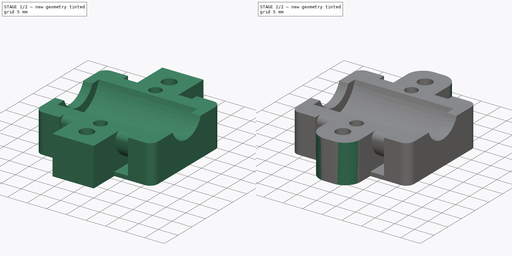
[diagram: build sequence overview — one tinted view per stage of 2, left to right]
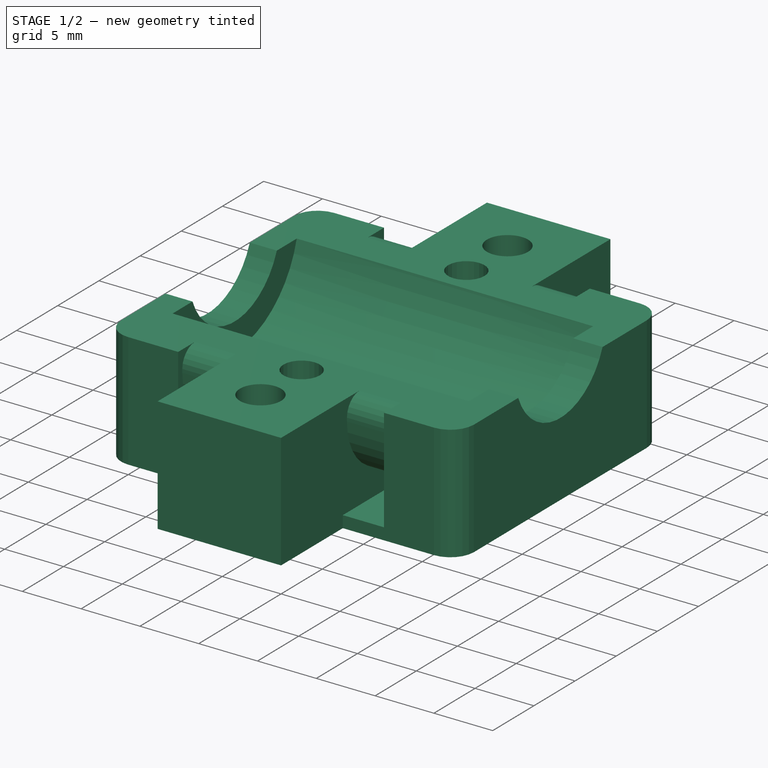
[diagram: stage 1 of 2 — iso view after this stage's code; geometry added in this stage tinted green]
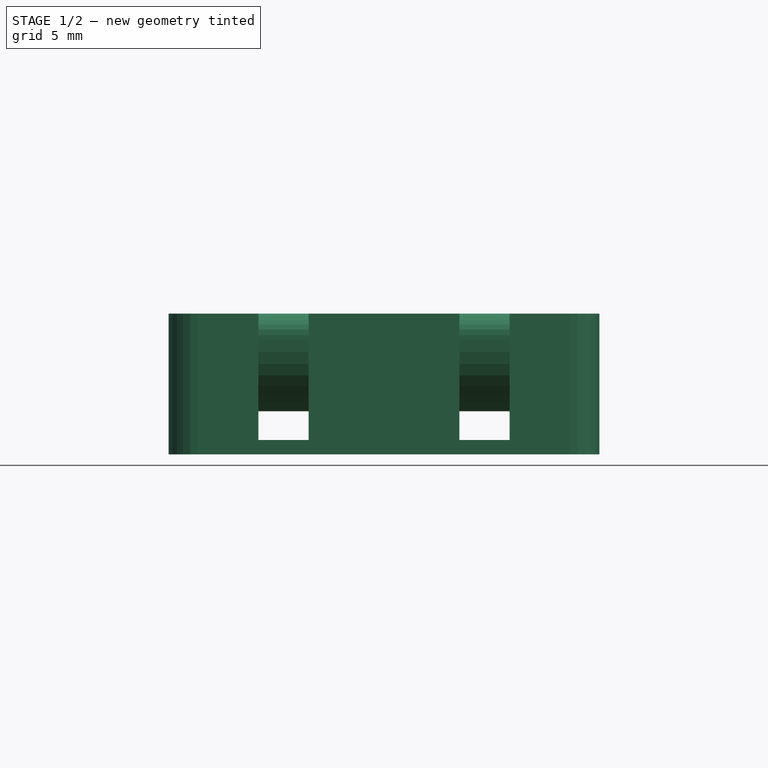
[diagram: stage 1 of 2 — front view after this stage's code; geometry added in this stage tinted green]
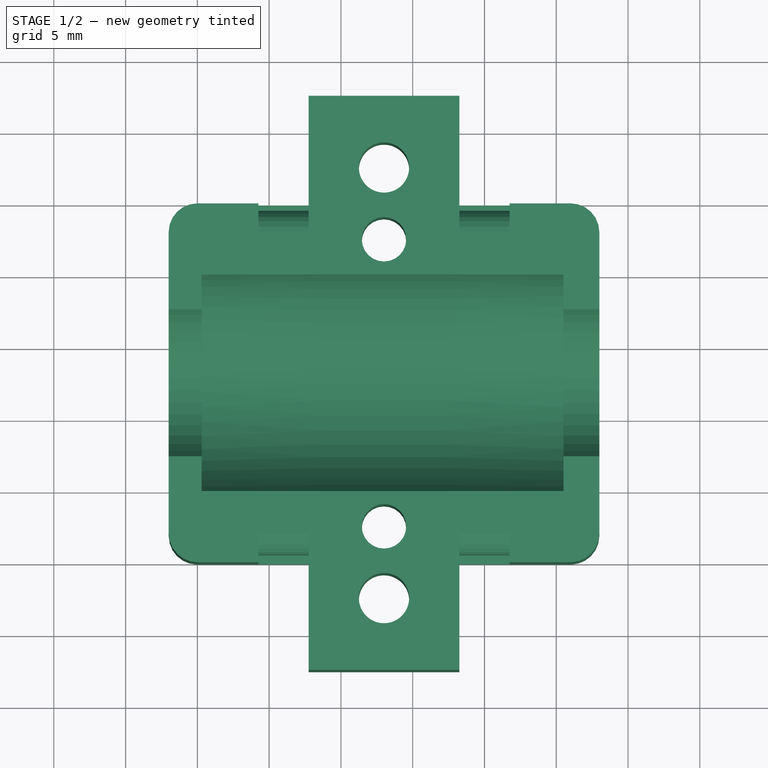
[diagram: stage 1 of 2 — top view after this stage's code; geometry added in this stage tinted green]
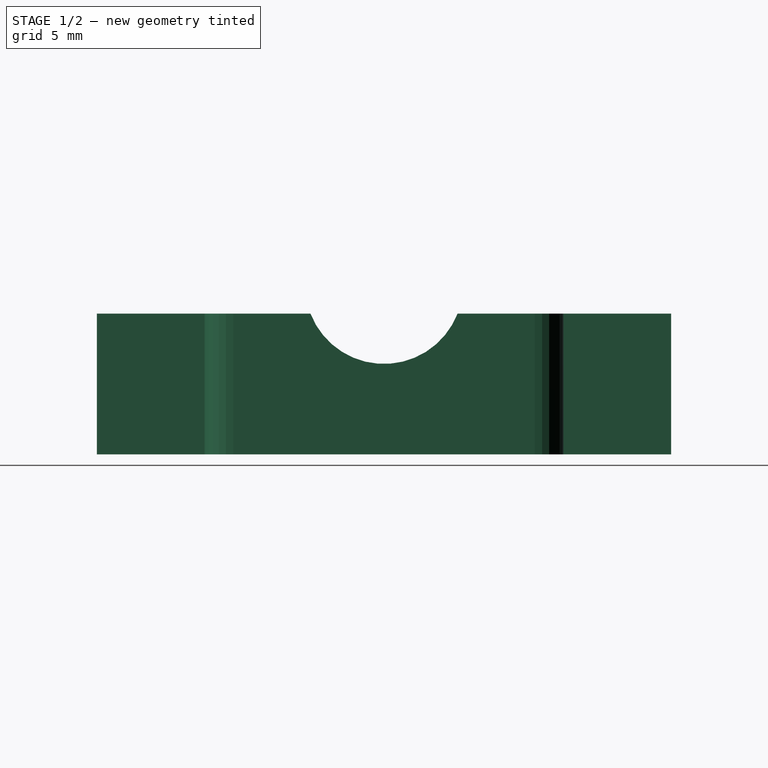
[diagram: stage 1 of 2 — right view after this stage's code; geometry added in this stage tinted green]
FCSTD DOCUMENT  (FreeCAD 0.14R2935 (Git))
Label: bearing-holder
License: CC-BY 3.0
LicenseURL: http://creativecommons.org/licenses/by/3.0/
objects: Part::Feature×1, Sketcher::SketchObject×1, PartDesign::Pad×1, PartDesign::Fillet×1
note: 5 computed .brp shape members not serialized (recipe doc carries the construction recipe); baked Part::Feature solids carry a one-line shape summary decoded from their .brp

FEATURE [Part::Feature] Solid
  shape: bbox 30 x 25 x 9.8 mm, 277 faces (baked)
FEATURE [Sketcher::SketchObject] Sketch
  ExternalGeometry = -> [Solid]
  Placement = pos=(0,0,0) rot=(1,0,0;3.14159rad)
  Support = -> Solid [Face1]
  sketch-geometry (15):
    g0: LineSegment StartX=-27.25 StartY=-50 StartZ=0 EndX=-16.75 EndY=-50 EndZ=0
    g1: LineSegment StartX=-16.75 StartY=-50 StartZ=0 EndX=-16.75 EndY=-57.5 EndZ=0
    g2: LineSegment StartX=-16.75 StartY=-57.5 StartZ=0 EndX=-27.25 EndY=-57.5 EndZ=0
    g3: LineSegment StartX=-27.25 StartY=-57.5 StartZ=0 EndX=-27.25 EndY=-50 EndZ=0
    g4: LineSegment StartX=-27.25 StartY=-25 StartZ=0 EndX=-16.75 EndY=-25 EndZ=0
    g5: LineSegment StartX=-16.75 StartY=-25 StartZ=0 EndX=-16.75 EndY=-17.5 EndZ=0
    g6: LineSegment StartX=-16.75 StartY=-17.5 StartZ=0 EndX=-27.25 EndY=-17.5 EndZ=0
    g7: LineSegment StartX=-27.25 StartY=-17.5 StartZ=0 EndX=-27.25 EndY=-25 EndZ=0
    g8: LineSegment [constr] StartX=-27.25 StartY=-57.5 StartZ=0 EndX=-22 EndY=-57.5 EndZ=0
    g9: LineSegment [constr] StartX=-22 StartY=-57.5 StartZ=0 EndX=-16.75 EndY=-57.5 EndZ=0
    g10: LineSegment [constr] StartX=-22 StartY=-57.5 StartZ=0 EndX=-22 EndY=-52.5 EndZ=0
    g11: LineSegment [constr] StartX=-22 StartY=-52.5 StartZ=0 EndX=-22 EndY=-22.5 EndZ=0
    g12: LineSegment [constr] StartX=-22 StartY=-22.5 StartZ=0 EndX=-22 EndY=-17.5 EndZ=0
    g13: Circle CenterX=-22 CenterY=-52.5 CenterZ=0 NormalX=0 NormalY=0 NormalZ=1 Radius=1.75
    g14: Circle CenterX=-22 CenterY=-22.5 CenterZ=0 NormalX=0 NormalY=0 NormalZ=1 Radius=1.75
  constraints (41):
    c: Coincident(g0,g1)
    c: Coincident(g1,g2)
    c: Coincident(g2,g3)
    c: Coincident(g3,g0)
    c: Horizontal(g0)
    c: Horizontal(g2)
    c: Vertical(g1)
    c: Vertical(g3)
    c: Coincident(g0,g-7)
    c: Coincident(g4,g5)
    c: Coincident(g5,g6)
    c: Coincident(g6,g7)
    c: Coincident(g7,g4)
    c: Horizontal(g4)
    c: Horizontal(g6)
    c: Vertical(g5)
    c: Vertical(g7)
    c: Coincident(g4,g-5)
    c: Coincident(g4,g-6)
    c: Coincident(g0,g-8)
    c: Equal(g5,g1)
    c: Horizontal(g8)
    c: Coincident(g8,g9)
    c: Horizontal(g9)
    c: Equal(g8,g9)
    c: Coincident(g10,g8)
    c: Vertical(g10)
    c: Coincident(g10,g11)
    c: Vertical(g11)
    c: Coincident(g11,g12)
    c: PointOnObject(g12,g6)
    c: Vertical(g12)
    c: Equal(g10,g12)
    c: Coincident(g8,g2)
    c: Coincident(g9,g1)
    c: Coincident(g13,g10)
    c: Coincident(g14,g11)
    c: Equal(g14,g13)
    c: Radius(g13) = 1.75
    c: Distance(g11) = 30
    c: Distance(g12) = 5
FEATURE [PartDesign::Pad] Pad
  Length = 9.8
  Length2 = 100
  Reversed = true
  Sketch = -> Sketch
  Type = 0
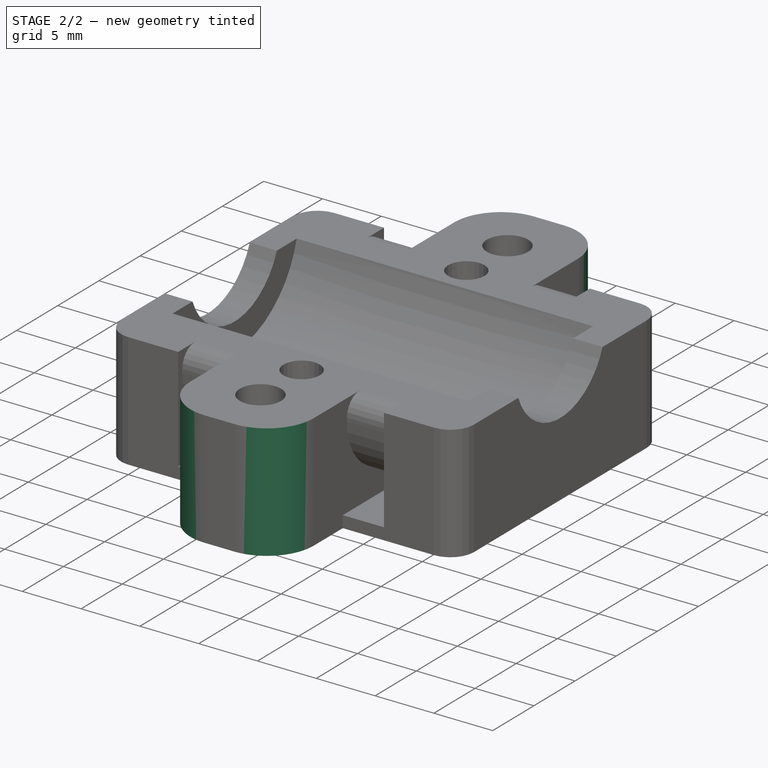
[diagram: stage 2 of 2 — iso view after this stage's code; geometry added in this stage tinted green]
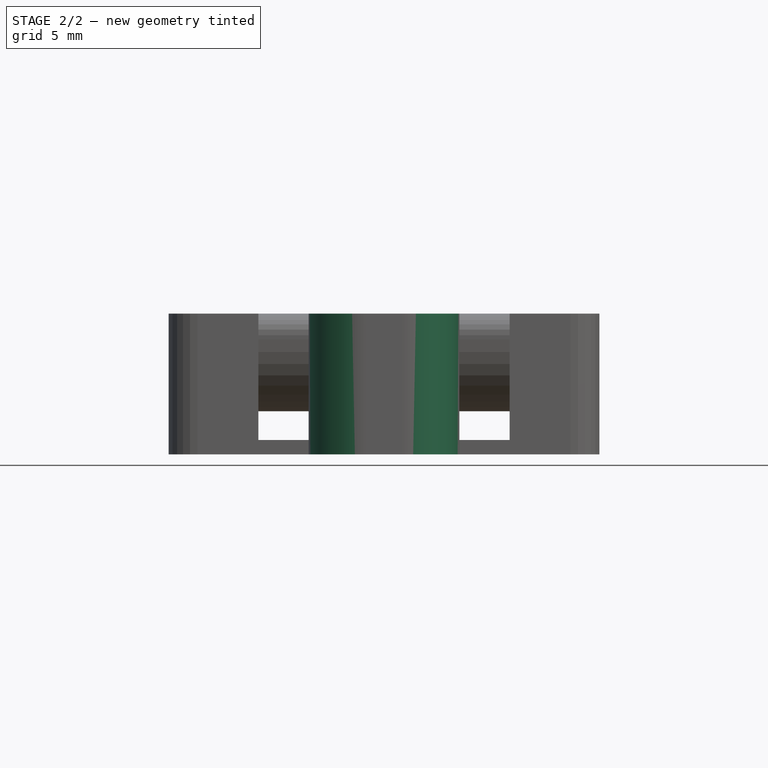
[diagram: stage 2 of 2 — front view after this stage's code; geometry added in this stage tinted green]
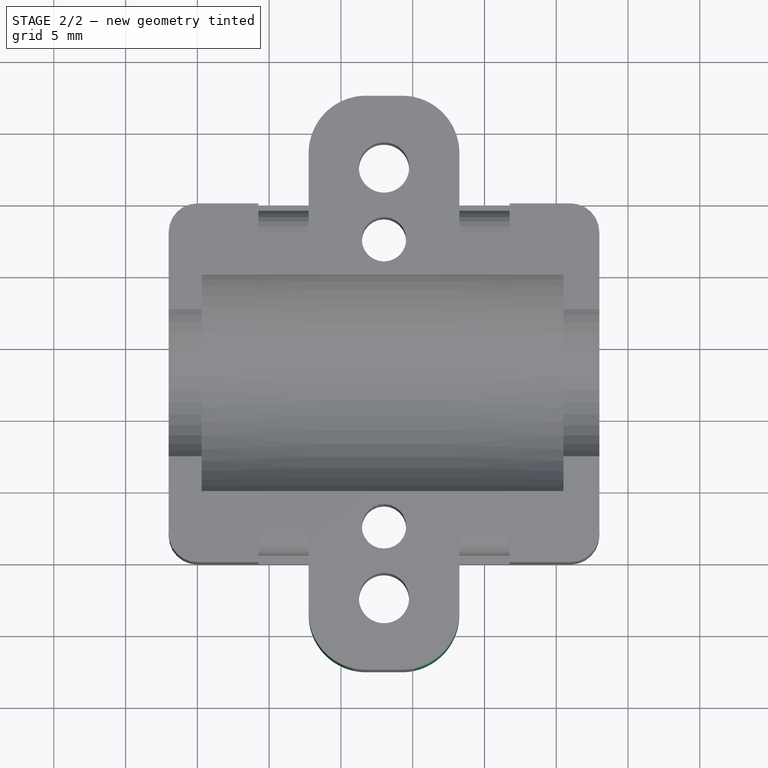
[diagram: stage 2 of 2 — top view after this stage's code; geometry added in this stage tinted green]
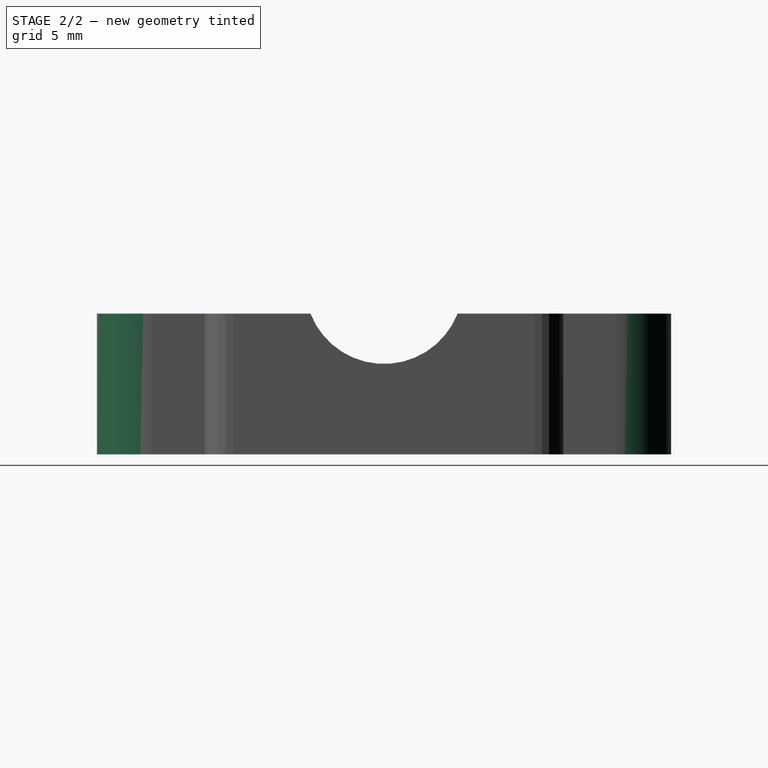
[diagram: stage 2 of 2 — right view after this stage's code; geometry added in this stage tinted green]
FEATURE [PartDesign::Fillet] Fillet
  Base = -> Pad [Edge515,Edge514,Edge692,Edge691]
  Radius = 4
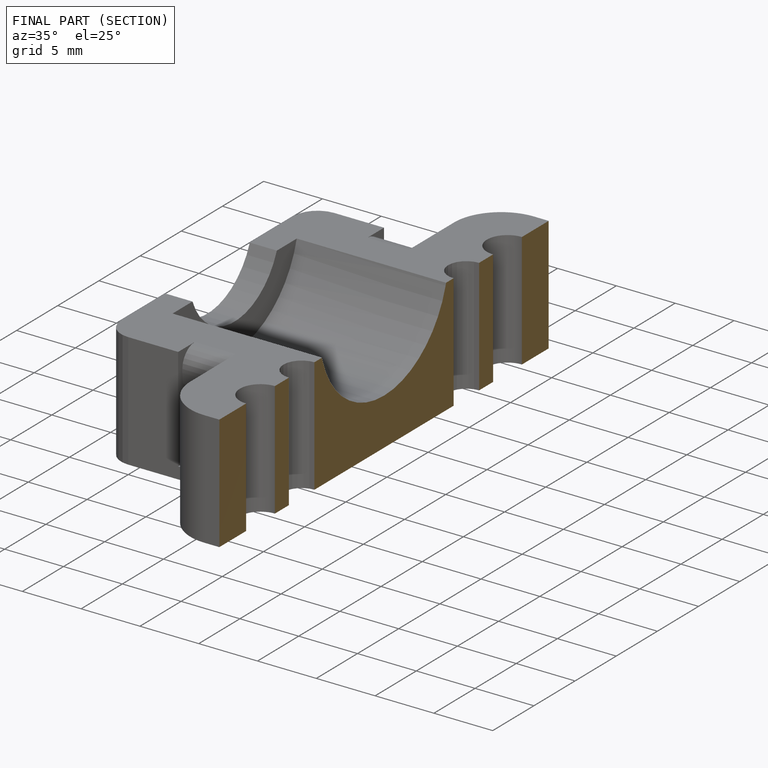
[diagram: finished part — half-section view (interior)]
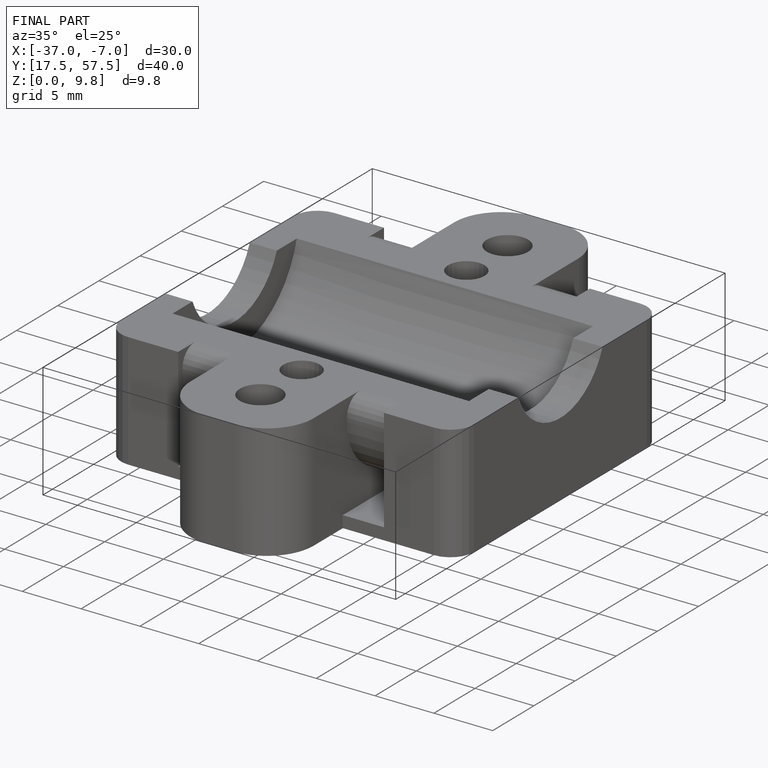
[diagram: finished part — iso view with bounding-box wireframe]
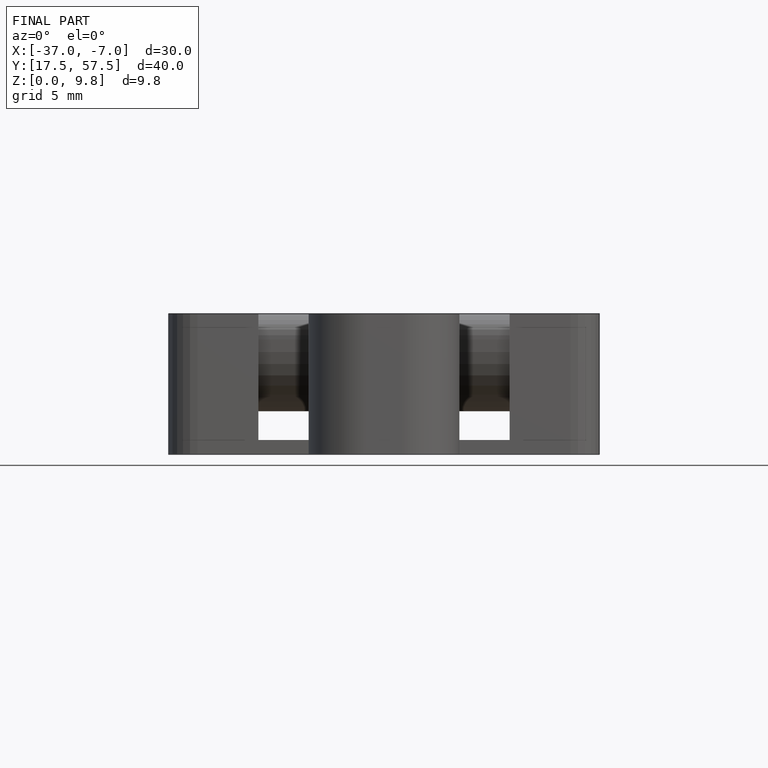
[diagram: finished part — front view with bounding-box wireframe]
